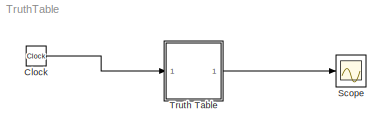
MODEL TruthTable
KIND model
BLOCK [Clock] Clock
  SID = 2
BLOCK [Scope] Scope
  Ports = [1]
  SID = 3
  ScopeSpecificationString = C++SS(StrPVP('SaveName','ScopeData'))
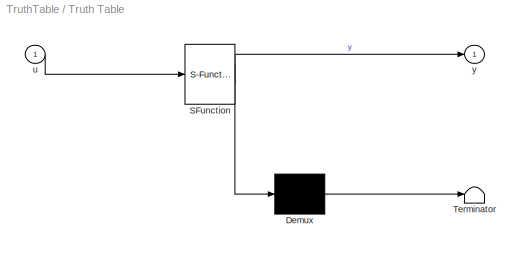
BLOCK [SubSystem] Truth Table
  ErrorFcn = Stateflow.Translate.translate
  PermitHierarchicalResolution = ExplicitOnly
  Ports = [1, 1]
  RequestExecContextInheritance = off
  SFBlockType = Truth Table
  SID = 1
  TreatAsAtomicUnit = on
  Variant = off
BLOCK [Demux] Truth Table/ Demux 
  Outputs = 1
  Ports = [1, 1]
  SID = 1::65
BLOCK [S-Function] Truth Table/ SFunction 
  EnableBusSupport = off
  FunctionName = sf_sfun
  PortCounts = [1 2]
  Ports = [1, 2]
  SFunctionDeploymentMode = off
  SID = 1::64
  Tag = Stateflow S-Function TruthTable 2
BLOCK [Terminator] Truth Table/ Terminator 
  SID = 1::66
BLOCK [Inport] Truth Table/u
  IconDisplay = Port number
  SID = 1::1
BLOCK [Outport] Truth Table/y
  IconDisplay = Port number
  SID = 1::5
LINE Clock:1 -> Truth Table:1
LINE Truth Table/ Demux :1 -> Truth Table/ Terminator :1
LINE Truth Table/ SFunction :1 -> Truth Table/ Demux :1
LINE Truth Table/ SFunction :2 -> Truth Table/y:1
LINE Truth Table/u:1 -> Truth Table/ SFunction :1
LINE Truth Table:1 -> Scope:1
CHART Truth Table states=1 transitions=1
  STATE_LABEL 'tt_blk_kernel'
